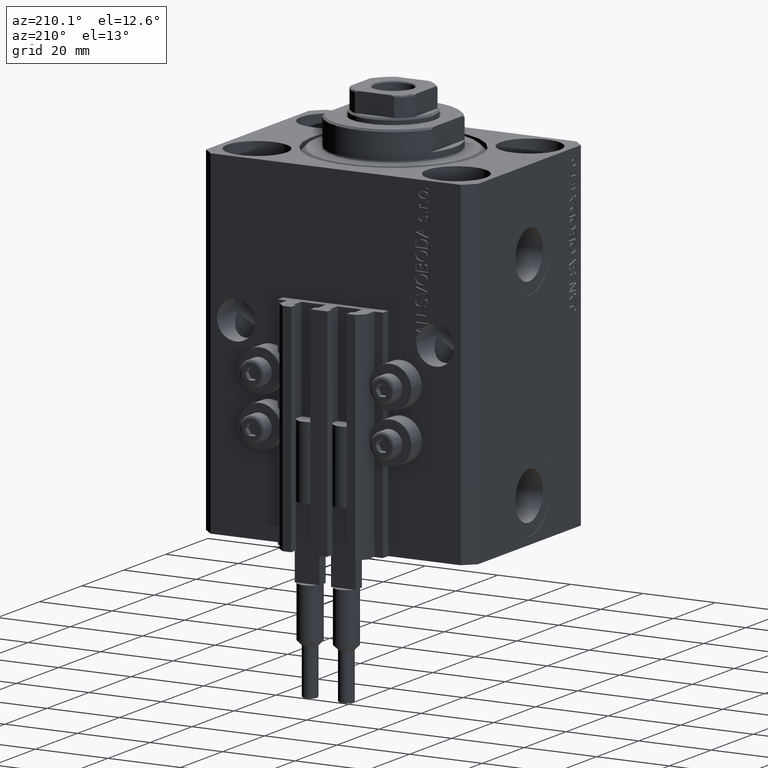
[diagram: clean part render]
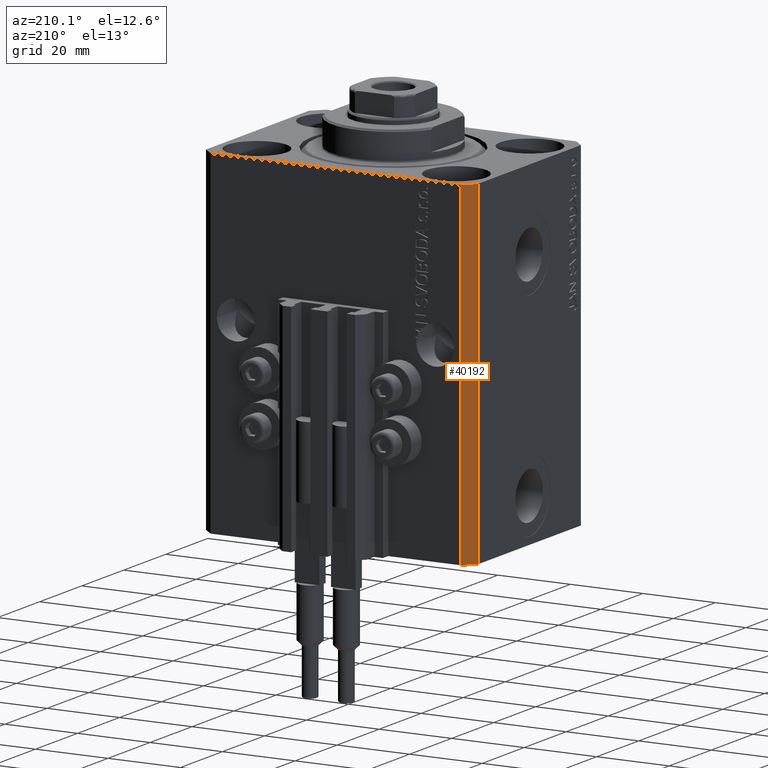
[diagram: same view with one face highlighted and labeled with its STEP entity id]
A machine part, auxiliary view. The second image highlights one B-rep face of the part: STEP entity #40192.
In plain terms, the highlighted planar face has unit normal (-0.7071, 0.7071, 0).
Its self-contained STEP definition (entity closure, byte-faithful):
#937 = LINE ( 'NONE', #38936, #29329 ) ;
#1566 = EDGE_CURVE ( 'NONE', #41084, #42665, #47956, .T. ) ;
#3245 = DIRECTION ( 'NONE',  ( -0.7071067811865479058, 0.7071067811865471286, 0.000000000000000000 ) ) ;
#3258 = CARTESIAN_POINT ( 'NONE',  ( -37.49999999999999289, 24.50000000000000000, -93.00000000000000000 ) ) ;
#3665 = CARTESIAN_POINT ( 'NONE',  ( -34.49999999999999289, 27.50000000000000000, -93.00000000000000000 ) ) ;
#7027 = DIRECTION ( 'NONE',  ( 0.000000000000000000, 0.000000000000000000, 1.000000000000000000 ) ) ;
#7149 = PLANE ( 'NONE',  #30144 ) ;
#7886 = EDGE_LOOP ( 'NONE', ( #33470, #14249, #23074, #42059 ) ) ;
#10021 = VECTOR ( 'NONE', #7027, 1000.000000000000000 ) ;
#10107 = DIRECTION ( 'NONE',  ( 0.000000000000000000, 0.000000000000000000, 1.000000000000000000 ) ) ;
#14249 = ORIENTED_EDGE ( 'NONE', *, *, #20160, .F. ) ;
#15811 = DIRECTION ( 'NONE',  ( -0.7071067811865471286, -0.7071067811865479058, 0.000000000000000000 ) ) ;
#18342 = CARTESIAN_POINT ( 'NONE',  ( -37.49999999999999289, 24.50000000000000000, 0.000000000000000000 ) ) ;
#20160 = EDGE_CURVE ( 'NONE', #36894, #33063, #31532, .T. ) ;
#20286 = VECTOR ( 'NONE', #10107, 1000.000000000000000 ) ;
#21313 = DIRECTION ( 'NONE',  ( -0.7071067811865471286, -0.7071067811865479058, 0.000000000000000000 ) ) ;
#21558 = CARTESIAN_POINT ( 'NONE',  ( -34.49999999999999289, 27.50000000000000000, 0.000000000000000000 ) ) ;
#23074 = ORIENTED_EDGE ( 'NONE', *, *, #42108, .T. ) ;
#27908 = CARTESIAN_POINT ( 'NONE',  ( -34.49999999999999289, 27.50000000000000000, -93.00000000000000000 ) ) ;
#29329 = VECTOR ( 'NONE', #15811, 1000.000000000000000 ) ;
#30144 = AXIS2_PLACEMENT_3D ( 'NONE', #43710, #3245, #43475 ) ;
#31532 = LINE ( 'NONE', #27908, #20286 ) ;
#33063 = VERTEX_POINT ( 'NONE', #46547 ) ;
#33470 = ORIENTED_EDGE ( 'NONE', *, *, #41190, .F. ) ;
#36894 = VERTEX_POINT ( 'NONE', #3665 ) ;
#37686 = CARTESIAN_POINT ( 'NONE',  ( -37.49999999999999289, 24.50000000000000000, -93.00000000000000000 ) ) ;
#38936 = CARTESIAN_POINT ( 'NONE',  ( -34.49999999999999289, 27.50000000000000000, -93.00000000000000000 ) ) ;
#39567 = FACE_OUTER_BOUND ( 'NONE', #7886, .T. ) ;
#40192 = ADVANCED_FACE ( 'NONE', ( #39567 ), #7149, .T. ) ;
#41084 = VERTEX_POINT ( 'NONE', #3258 ) ;
#41190 = EDGE_CURVE ( 'NONE', #33063, #42665, #47622, .T. ) ;
#42059 = ORIENTED_EDGE ( 'NONE', *, *, #1566, .T. ) ;
#42108 = EDGE_CURVE ( 'NONE', #36894, #41084, #937, .T. ) ;
#42665 = VERTEX_POINT ( 'NONE', #18342 ) ;
#43475 = DIRECTION ( 'NONE',  ( -0.7071067811865471286, -0.7071067811865479058, 0.000000000000000000 ) ) ;
#43710 = CARTESIAN_POINT ( 'NONE',  ( -34.49999999999999289, 27.50000000000000000, -93.00000000000000000 ) ) ;
#45758 = VECTOR ( 'NONE', #21313, 1000.000000000000000 ) ;
#46547 = CARTESIAN_POINT ( 'NONE',  ( -34.49999999999999289, 27.50000000000000000, 0.000000000000000000 ) ) ;
#47622 = LINE ( 'NONE', #21558, #45758 ) ;
#47956 = LINE ( 'NONE', #37686, #10021 ) ;